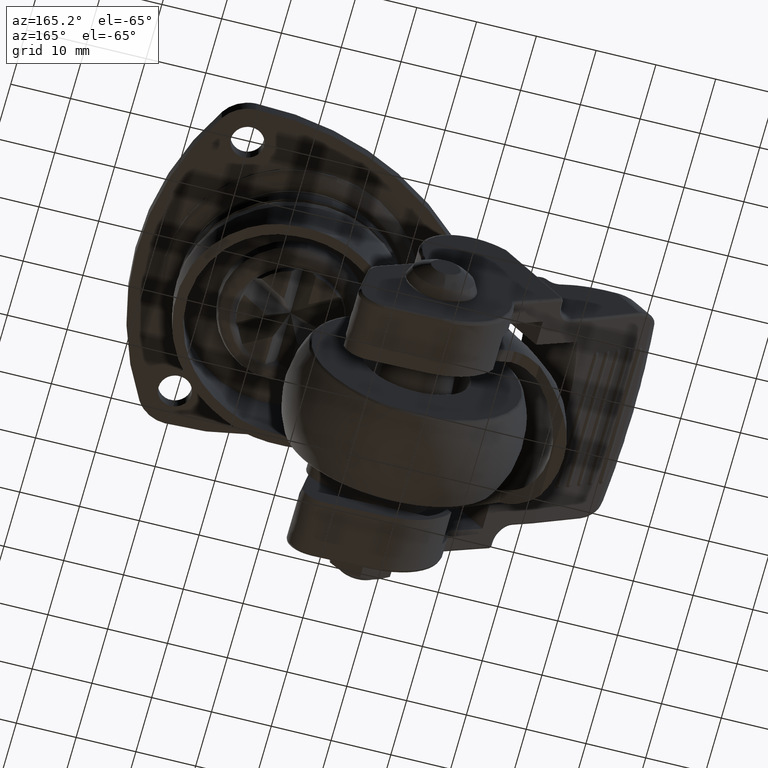
[diagram: clean part render]
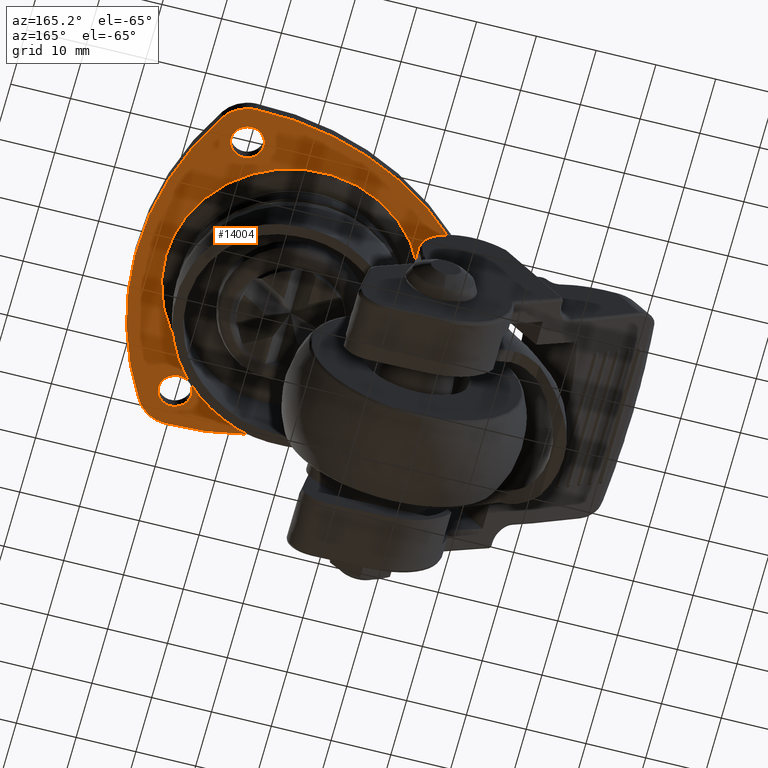
[diagram: same view with one face highlighted and labeled with its STEP entity id]
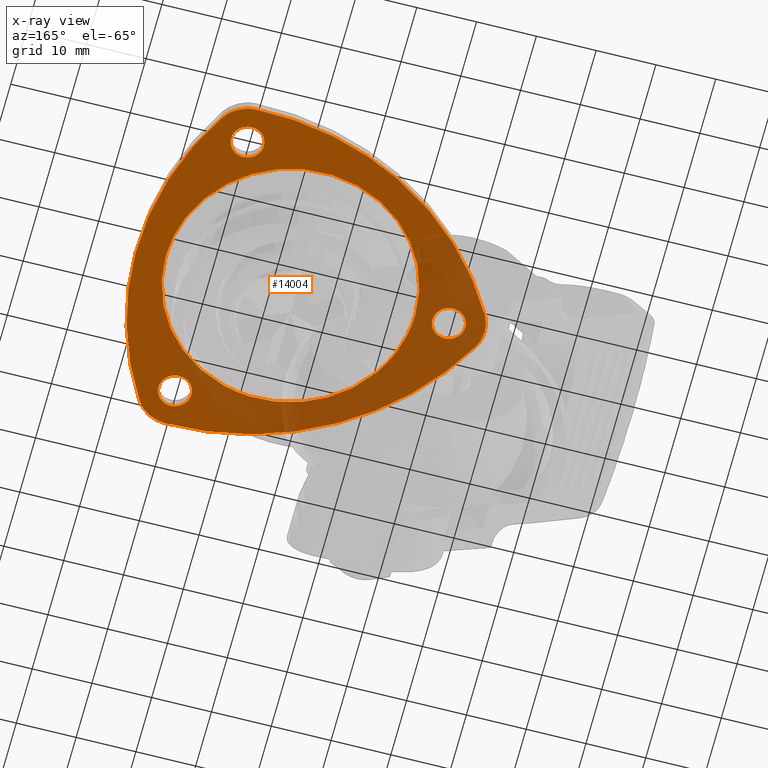
[diagram: x-ray of the same camera — body ghosted, the highlighted face saturated]
A machine part, auxiliary view. The second image highlights one B-rep face of the part: STEP entity #14004.
The next image is the same camera in x-ray: the body ghosted, the highlighted face saturated — about 40% of this face is hidden behind the body in this view.
In plain terms, the highlighted face is a freeform B-spline surface patch.
Its self-contained STEP definition (entity closure, byte-faithful):
#11914=CARTESIAN_POINT('',(-19.528077688085549,-7.334797007773908,-2.300000000000546));
#11915=VERTEX_POINT('',#11914);
#11921=CARTESIAN_POINT('',(-20.860130999999800,0.0,-2.300000000000095));
#11922=VERTEX_POINT('',#11921);
#11923=CARTESIAN_POINT('',(-19.528077688085553,-7.334797007773908,-2.300000000000546));
#11924=CARTESIAN_POINT('',(-20.860130999999797,-3.788353863932447,-2.300000000000094));
#11925=CARTESIAN_POINT('',(-20.860130999999800,0.0,-2.300000000000095));
#11933=(BOUNDED_CURVE()B_SPLINE_CURVE(2,(#11923,#11924,#11925),.UNSPECIFIED.,.F.,.U.)B_SPLINE_CURVE_WITH_KNOTS((3,3),(0.940284170898729,1.0),.UNSPECIFIED.)CURVE()GEOMETRIC_REPRESENTATION_ITEM()RATIONAL_B_SPLINE_CURVE((0.893499554635545,0.930038554401659,1.0))REPRESENTATION_ITEM(''));
#11934=EDGE_CURVE('',#11915,#11922,#11933,.T.);
#11936=CARTESIAN_POINT('',(20.860130999999800,0.0,-2.300000000000095));
#11937=VERTEX_POINT('',#11936);
#11938=CARTESIAN_POINT('',(-20.860130999999800,0.0,-2.300000000000095));
#11939=CARTESIAN_POINT('',(-20.860130999999807,20.860130999999807,-2.300000000000095));
#11940=CARTESIAN_POINT('',(0.0,20.860130999999800,-2.300000000000095));
#11941=CARTESIAN_POINT('',(20.860130999999807,20.860130999999807,-2.300000000000095));
#11942=CARTESIAN_POINT('',(20.860130999999800,0.0,-2.300000000000095));
#11950=(BOUNDED_CURVE()B_SPLINE_CURVE(2,(#11938,#11939,#11940,#11941,#11942),.UNSPECIFIED.,.F.,.U.)B_SPLINE_CURVE_WITH_KNOTS((3,2,3),(0.0,0.250000000000000,0.500000000000000),.UNSPECIFIED.)CURVE()GEOMETRIC_REPRESENTATION_ITEM()RATIONAL_B_SPLINE_CURVE((1.0,0.707106781186548,1.0,0.707106781186548,1.0))REPRESENTATION_ITEM(''));
#11951=EDGE_CURVE('',#11922,#11937,#11950,.T.);
#11953=CARTESIAN_POINT('',(1.273480532064832,-20.821222650738001,-2.300000000000293));
#11954=VERTEX_POINT('',#11953);
#11955=CARTESIAN_POINT('',(20.860130999999800,0.0,-2.300000000000095));
#11956=CARTESIAN_POINT('',(20.860130999999800,-19.623251788130293,-2.300000000000095));
#11957=CARTESIAN_POINT('',(1.273480532064832,-20.821222650737997,-2.300000000000293));
#11965=(BOUNDED_CURVE()B_SPLINE_CURVE(2,(#11955,#11956,#11957),.UNSPECIFIED.,.F.,.U.)B_SPLINE_CURVE_WITH_KNOTS((3,3),(0.500000000000000,0.739332962241818),.UNSPECIFIED.)CURVE()GEOMETRIC_REPRESENTATION_ITEM()RATIONAL_B_SPLINE_CURVE((1.0,0.719603993283341,0.976072041672880))REPRESENTATION_ITEM(''));
#11966=EDGE_CURVE('',#11937,#11954,#11965,.T.);
#12053=CARTESIAN_POINT('',(1.273480532064832,-20.821222650737997,-2.300000000000293));
#12054=CARTESIAN_POINT('',(0.637334644829624,-20.860130999999804,-2.300000000000094));
#12055=CARTESIAN_POINT('',(0.0,-20.860130999999800,-2.300000000000095));
#12056=CARTESIAN_POINT('',(-14.447926898025001,-20.860130999999804,-2.300000000000095));
#12057=CARTESIAN_POINT('',(-19.528077688085546,-7.334797007773908,-2.300000000000546));
#12065=(BOUNDED_CURVE()B_SPLINE_CURVE(2,(#12053,#12054,#12055,#12056,#12057),.UNSPECIFIED.,.F.,.U.)B_SPLINE_CURVE_WITH_KNOTS((3,2,3),(0.739332962241818,0.750000000000000,0.940284170898730),.UNSPECIFIED.)CURVE()GEOMETRIC_REPRESENTATION_ITEM()RATIONAL_B_SPLINE_CURVE((0.976072041672880,0.987502787903206,1.0,0.777068226784887,0.893499554635547))REPRESENTATION_ITEM(''));
#12066=EDGE_CURVE('',#11954,#11915,#12065,.T.);
#12128=CARTESIAN_POINT('',(-26.332119387536771,2.744870871270759,-2.300000000000080));
#12129=VERTEX_POINT('',#12128);
#12135=CARTESIAN_POINT('',(-23.750000000000000,0.0,-2.300000000000080));
#12136=VERTEX_POINT('',#12135);
#12137=CARTESIAN_POINT('',(-23.750000000000000,0.0,-2.300000000000080));
#12138=CARTESIAN_POINT('',(-23.750000000000004,2.586944395105406,-2.300000000000081));
#12139=CARTESIAN_POINT('',(-26.332119387536771,2.744870871270759,-2.300000000000080));
#12147=(BOUNDED_CURVE()B_SPLINE_CURVE(2,(#12137,#12138,#12139),.UNSPECIFIED.,.F.,.U.)B_SPLINE_CURVE_WITH_KNOTS((3,3),(0.500000000000000,0.739333142733659),.UNSPECIFIED.)CURVE()GEOMETRIC_REPRESENTATION_ITEM()RATIONAL_B_SPLINE_CURVE((1.0,0.719603781823997,0.976072428501558))REPRESENTATION_ITEM(''));
#12148=EDGE_CURVE('',#12136,#12129,#12147,.T.);
#12150=CARTESIAN_POINT('',(-26.824594145409119,-2.730776197487835,-2.300000000000080));
#12151=VERTEX_POINT('',#12150);
#12152=CARTESIAN_POINT('',(-26.824594145409122,-2.730776197487835,-2.300000000000079));
#12153=CARTESIAN_POINT('',(-26.662866329146880,-2.750000000000000,-2.300000000000079));
#12154=CARTESIAN_POINT('',(-26.500000000000000,-2.750000000000000,-2.300000000000080));
#12155=CARTESIAN_POINT('',(-23.750000000000011,-2.750000000000000,-2.300000000000080));
#12156=CARTESIAN_POINT('',(-23.750000000000000,0.0,-2.300000000000080));
#12164=(BOUNDED_CURVE()B_SPLINE_CURVE(2,(#12152,#12153,#12154,#12155,#12156),.UNSPECIFIED.,.F.,.U.)B_SPLINE_CURVE_WITH_KNOTS((3,2,3),(0.229562473502891,0.250000000000000,0.500000000000000),.UNSPECIFIED.)CURVE()GEOMETRIC_REPRESENTATION_ITEM()RATIONAL_B_SPLINE_CURVE((0.956026754162888,0.976055948318705,1.0,0.707106781186548,1.0))REPRESENTATION_ITEM(''));
#12165=EDGE_CURVE('',#12151,#12136,#12164,.T.);
#12209=CARTESIAN_POINT('',(-29.250000000000000,0.0,-2.300000000000080));
#12210=VERTEX_POINT('',#12209);
#12211=CARTESIAN_POINT('',(-29.250000000000000,0.0,-2.300000000000080));
#12212=CARTESIAN_POINT('',(-29.250000000000000,-2.442479946180645,-2.300000000000080));
#12213=CARTESIAN_POINT('',(-26.824594145409119,-2.730776197487836,-2.300000000000080));
#12221=(BOUNDED_CURVE()B_SPLINE_CURVE(2,(#12211,#12212,#12213),.UNSPECIFIED.,.F.,.U.)B_SPLINE_CURVE_WITH_KNOTS((3,3),(0.0,0.229562473502891),.UNSPECIFIED.)CURVE()GEOMETRIC_REPRESENTATION_ITEM()RATIONAL_B_SPLINE_CURVE((1.0,0.731050832867842,0.956026754162888))REPRESENTATION_ITEM(''));
#12222=EDGE_CURVE('',#12210,#12151,#12221,.T.);
#12224=CARTESIAN_POINT('',(-26.332119387536768,2.744870871270759,-2.300000000000080));
#12225=CARTESIAN_POINT('',(-26.415981340582942,2.750000000000000,-2.300000000000079));
#12226=CARTESIAN_POINT('',(-26.500000000000000,2.750000000000000,-2.300000000000080));
#12227=CARTESIAN_POINT('',(-29.250000000000004,2.750000000000000,-2.300000000000080));
#12228=CARTESIAN_POINT('',(-29.250000000000000,0.0,-2.300000000000080));
#12236=(BOUNDED_CURVE()B_SPLINE_CURVE(2,(#12224,#12225,#12226,#12227,#12228),.UNSPECIFIED.,.F.,.U.)B_SPLINE_CURVE_WITH_KNOTS((3,2,3),(0.739333142733659,0.750000000000000,1.0),.UNSPECIFIED.)CURVE()GEOMETRIC_REPRESENTATION_ITEM()RATIONAL_B_SPLINE_CURVE((0.976072428501559,0.987502999362551,1.0,0.707106781186548,1.0))REPRESENTATION_ITEM(''));
#12237=EDGE_CURVE('',#12129,#12210,#12236,.T.);
#12314=CARTESIAN_POINT('',(13.417880612463231,25.694544871270761,-2.300000000000080));
#12315=VERTEX_POINT('',#12314);
#12321=CARTESIAN_POINT('',(16.0,22.949674000000002,-2.300000000000080));
#12322=VERTEX_POINT('',#12321);
#12323=CARTESIAN_POINT('',(16.0,22.949674000000002,-2.300000000000080));
#12324=CARTESIAN_POINT('',(16.000000000000004,25.536618395105407,-2.300000000000080));
#12325=CARTESIAN_POINT('',(13.417880612463231,25.694544871270761,-2.300000000000080));
#12333=(BOUNDED_CURVE()B_SPLINE_CURVE(2,(#12323,#12324,#12325),.UNSPECIFIED.,.F.,.U.)B_SPLINE_CURVE_WITH_KNOTS((3,3),(0.500000000000000,0.739333142733659),.UNSPECIFIED.)CURVE()GEOMETRIC_REPRESENTATION_ITEM()RATIONAL_B_SPLINE_CURVE((1.0,0.719603781823997,0.976072428501558))REPRESENTATION_ITEM(''));
#12334=EDGE_CURVE('',#12322,#12315,#12333,.T.);
#12336=CARTESIAN_POINT('',(12.925405854590879,20.218897802512171,-2.300000000000080));
#12337=VERTEX_POINT('',#12336);
#12338=CARTESIAN_POINT('',(12.925405854590876,20.218897802512171,-2.300000000000080));
#12339=CARTESIAN_POINT('',(13.087133670853124,20.199674000000005,-2.300000000000079));
#12340=CARTESIAN_POINT('',(13.250000000000000,20.199674000000002,-2.300000000000080));
#12341=CARTESIAN_POINT('',(15.999999999999998,20.199674000000009,-2.300000000000080));
#12342=CARTESIAN_POINT('',(16.0,22.949674000000002,-2.300000000000080));
#12350=(BOUNDED_CURVE()B_SPLINE_CURVE(2,(#12338,#12339,#12340,#12341,#12342),.UNSPECIFIED.,.F.,.U.)B_SPLINE_CURVE_WITH_KNOTS((3,2,3),(0.229562473502891,0.250000000000000,0.500000000000000),.UNSPECIFIED.)CURVE()GEOMETRIC_REPRESENTATION_ITEM()RATIONAL_B_SPLINE_CURVE((0.956026754162888,0.976055948318706,1.0,0.707106781186548,1.0))REPRESENTATION_ITEM(''));
#12351=EDGE_CURVE('',#12337,#12322,#12350,.T.);
#12395=CARTESIAN_POINT('',(10.500000000000000,22.949674000000002,-2.300000000000080));
#12396=VERTEX_POINT('',#12395);
#12397=CARTESIAN_POINT('',(10.500000000000000,22.949674000000002,-2.300000000000080));
#12398=CARTESIAN_POINT('',(10.500000000000000,20.507194053819351,-2.300000000000079));
#12399=CARTESIAN_POINT('',(12.925405854590876,20.218897802512171,-2.300000000000080));
#12407=(BOUNDED_CURVE()B_SPLINE_CURVE(2,(#12397,#12398,#12399),.UNSPECIFIED.,.F.,.U.)B_SPLINE_CURVE_WITH_KNOTS((3,3),(0.0,0.229562473502891),.UNSPECIFIED.)CURVE()GEOMETRIC_REPRESENTATION_ITEM()RATIONAL_B_SPLINE_CURVE((1.0,0.731050832867842,0.956026754162888))REPRESENTATION_ITEM(''));
#12408=EDGE_CURVE('',#12396,#12337,#12407,.T.);
#12410=CARTESIAN_POINT('',(13.417880612463231,25.694544871270761,-2.300000000000080));
#12411=CARTESIAN_POINT('',(13.334018659417062,25.699674000000002,-2.300000000000080));
#12412=CARTESIAN_POINT('',(13.250000000000000,25.699674000000002,-2.300000000000080));
#12413=CARTESIAN_POINT('',(10.499999999999998,25.699673999999991,-2.300000000000080));
#12414=CARTESIAN_POINT('',(10.500000000000000,22.949674000000002,-2.300000000000080));
#12422=(BOUNDED_CURVE()B_SPLINE_CURVE(2,(#12410,#12411,#12412,#12413,#12414),.UNSPECIFIED.,.F.,.U.)B_SPLINE_CURVE_WITH_KNOTS((3,2,3),(0.739333142733659,0.750000000000000,1.0),.UNSPECIFIED.)CURVE()GEOMETRIC_REPRESENTATION_ITEM()RATIONAL_B_SPLINE_CURVE((0.976072428501558,0.987502999362551,1.0,0.707106781186548,1.0))REPRESENTATION_ITEM(''));
#12423=EDGE_CURVE('',#12315,#12396,#12422,.T.);
#12500=CARTESIAN_POINT('',(13.417880612463231,-20.204802128729341,-2.300000000000080));
#12501=VERTEX_POINT('',#12500);
#12507=CARTESIAN_POINT('',(16.0,-22.949673000000100,-2.300000000000080));
#12508=VERTEX_POINT('',#12507);
#12509=CARTESIAN_POINT('',(16.0,-22.949673000000100,-2.300000000000080));
#12510=CARTESIAN_POINT('',(16.000000000000004,-20.362728604894698,-2.300000000000080));
#12511=CARTESIAN_POINT('',(13.417880612463231,-20.204802128729341,-2.300000000000080));
#12519=(BOUNDED_CURVE()B_SPLINE_CURVE(2,(#12509,#12510,#12511),.UNSPECIFIED.,.F.,.U.)B_SPLINE_CURVE_WITH_KNOTS((3,3),(0.500000000000000,0.739333142733659),.UNSPECIFIED.)CURVE()GEOMETRIC_REPRESENTATION_ITEM()RATIONAL_B_SPLINE_CURVE((1.0,0.719603781823997,0.976072428501558))REPRESENTATION_ITEM(''));
#12520=EDGE_CURVE('',#12508,#12501,#12519,.T.);
#12522=CARTESIAN_POINT('',(12.925405854590879,-25.680449197487938,-2.300000000000080));
#12523=VERTEX_POINT('',#12522);
#12524=CARTESIAN_POINT('',(12.925405854590879,-25.680449197487938,-2.300000000000080));
#12525=CARTESIAN_POINT('',(13.087133670853126,-25.699673000000097,-2.300000000000080));
#12526=CARTESIAN_POINT('',(13.250000000000000,-25.699673000000100,-2.300000000000080));
#12527=CARTESIAN_POINT('',(15.999999999999998,-25.699673000000107,-2.300000000000080));
#12528=CARTESIAN_POINT('',(16.0,-22.949673000000100,-2.300000000000080));
#12536=(BOUNDED_CURVE()B_SPLINE_CURVE(2,(#12524,#12525,#12526,#12527,#12528),.UNSPECIFIED.,.F.,.U.)B_SPLINE_CURVE_WITH_KNOTS((3,2,3),(0.229562473502891,0.250000000000000,0.500000000000000),.UNSPECIFIED.)CURVE()GEOMETRIC_REPRESENTATION_ITEM()RATIONAL_B_SPLINE_CURVE((0.956026754162888,0.976055948318706,1.0,0.707106781186548,1.0))REPRESENTATION_ITEM(''));
#12537=EDGE_CURVE('',#12523,#12508,#12536,.T.);
#12581=CARTESIAN_POINT('',(10.500000000000000,-22.949673000000100,-2.300000000000080));
#12582=VERTEX_POINT('',#12581);
#12583=CARTESIAN_POINT('',(10.500000000000000,-22.949673000000100,-2.300000000000080));
#12584=CARTESIAN_POINT('',(10.500000000000000,-25.392152946180747,-2.300000000000080));
#12585=CARTESIAN_POINT('',(12.925405854590879,-25.680449197487938,-2.300000000000080));
#12593=(BOUNDED_CURVE()B_SPLINE_CURVE(2,(#12583,#12584,#12585),.UNSPECIFIED.,.F.,.U.)B_SPLINE_CURVE_WITH_KNOTS((3,3),(0.0,0.229562473502891),.UNSPECIFIED.)CURVE()GEOMETRIC_REPRESENTATION_ITEM()RATIONAL_B_SPLINE_CURVE((1.0,0.731050832867842,0.956026754162888))REPRESENTATION_ITEM(''));
#12594=EDGE_CURVE('',#12582,#12523,#12593,.T.);
#12596=CARTESIAN_POINT('',(13.417880612463231,-20.204802128729341,-2.300000000000080));
#12597=CARTESIAN_POINT('',(13.334018659417062,-20.199673000000104,-2.300000000000080));
#12598=CARTESIAN_POINT('',(13.250000000000000,-20.199673000000100,-2.300000000000080));
#12599=CARTESIAN_POINT('',(10.499999999999998,-20.199673000000111,-2.300000000000080));
#12600=CARTESIAN_POINT('',(10.500000000000000,-22.949673000000100,-2.300000000000080));
#12608=(BOUNDED_CURVE()B_SPLINE_CURVE(2,(#12596,#12597,#12598,#12599,#12600),.UNSPECIFIED.,.F.,.U.)B_SPLINE_CURVE_WITH_KNOTS((3,2,3),(0.739333142733659,0.750000000000000,1.0),.UNSPECIFIED.)CURVE()GEOMETRIC_REPRESENTATION_ITEM()RATIONAL_B_SPLINE_CURVE((0.976072428501558,0.987502999362551,1.0,0.707106781186548,1.0))REPRESENTATION_ITEM(''));
#12609=EDGE_CURVE('',#12501,#12582,#12608,.T.);
#13883=CARTESIAN_POINT('',(-35.407548841360907,31.853379514801791,-2.300000000000095));
#13884=CARTESIAN_POINT('',(28.616739386169861,31.853379514801791,-2.300000000000095));
#13885=CARTESIAN_POINT('',(-35.407548841360907,-31.853376444295250,-2.300000000000095));
#13886=CARTESIAN_POINT('',(28.616739386169861,-31.853376444295250,-2.300000000000095));
#13887=B_SPLINE_SURFACE_WITH_KNOTS('',1,1,((#13883,#13885),(#13884,#13886)),.UNSPECIFIED.,.F.,.F.,.U.,(2,2),(2,2),(0.0,64.024288227530775),(0.0,63.706755959097052),.UNSPECIFIED.);
#13888=CARTESIAN_POINT('',(18.369201818529849,26.079173804453351,-2.300000000000080));
#13889=VERTEX_POINT('',#13888);
#13890=CARTESIAN_POINT('',(13.400626615101521,28.947782728843048,-2.300000000000080));
#13891=VERTEX_POINT('',#13890);
#13892=CARTESIAN_POINT('',(18.369201818529849,26.079173804453351,-2.300000000000080));
#13893=CARTESIAN_POINT('',(16.665671970180849,28.865790037092776,-2.300000000000080));
#13894=CARTESIAN_POINT('',(13.400626615101521,28.947782728843048,-2.300000000000080));
#13902=(BOUNDED_CURVE()B_SPLINE_CURVE(2,(#13892,#13893,#13894),.UNSPECIFIED.,.F.,.U.)CURVE()GEOMETRIC_REPRESENTATION_ITEM()QUASI_UNIFORM_CURVE()RATIONAL_B_SPLINE_CURVE((1.0,0.878304632990336,1.0))REPRESENTATION_ITEM(''));
#13903=EDGE_CURVE('',#13889,#13891,#13902,.T.);
#13904=ORIENTED_EDGE('',*,*,#13903,.F.);
#13905=CARTESIAN_POINT('',(18.369201538223550,-26.079173856534499,-2.300000000000080));
#13906=VERTEX_POINT('',#13905);
#13907=CARTESIAN_POINT('',(18.369201538223550,-26.079173856534499,-2.300000000000080));
#13908=CARTESIAN_POINT('',(34.312078163401253,-0.000000111719852,-2.300000000000080));
#13909=CARTESIAN_POINT('',(18.369201818529859,26.079173804453340,-2.300000000000080));
#13917=(BOUNDED_CURVE()B_SPLINE_CURVE(2,(#13907,#13908,#13909),.UNSPECIFIED.,.F.,.U.)CURVE()GEOMETRIC_REPRESENTATION_ITEM()QUASI_UNIFORM_CURVE()RATIONAL_B_SPLINE_CURVE((1.0,0.853200255376253,1.0))REPRESENTATION_ITEM(''));
#13918=EDGE_CURVE('',#13906,#13889,#13917,.T.);
#13919=ORIENTED_EDGE('',*,*,#13918,.F.);
#13920=CARTESIAN_POINT('',(13.400626615101540,-28.947781728843250,-2.300000000000080));
#13921=VERTEX_POINT('',#13920);
#13922=CARTESIAN_POINT('',(13.400626615101540,-28.947781728843250,-2.300000000000080));
#13923=CARTESIAN_POINT('',(16.665671293823422,-28.865789054077798,-2.300000000000080));
#13924=CARTESIAN_POINT('',(18.369201538223560,-26.079173856534499,-2.300000000000080));
#13932=(BOUNDED_CURVE()B_SPLINE_CURVE(2,(#13922,#13923,#13924),.UNSPECIFIED.,.F.,.U.)CURVE()GEOMETRIC_REPRESENTATION_ITEM()QUASI_UNIFORM_CURVE()RATIONAL_B_SPLINE_CURVE((1.0,0.878304674578743,1.0))REPRESENTATION_ITEM(''));
#13933=EDGE_CURVE('',#13921,#13906,#13932,.T.);
#13934=ORIENTED_EDGE('',*,*,#13933,.F.);
#13935=CARTESIAN_POINT('',(-31.769828012035550,-2.868608150926780,-2.300000000000080));
#13936=VERTEX_POINT('',#13935);
#13937=CARTESIAN_POINT('',(-31.769828012035550,-2.868608150926780,-2.300000000000080));
#13938=CARTESIAN_POINT('',(-17.156038600813027,-29.715130692859464,-2.300000000000080));
#13939=CARTESIAN_POINT('',(13.400626615101521,-28.947781728843150,-2.300000000000080));
#13947=(BOUNDED_CURVE()B_SPLINE_CURVE(2,(#13937,#13938,#13939),.UNSPECIFIED.,.F.,.U.)CURVE()GEOMETRIC_REPRESENTATION_ITEM()QUASI_UNIFORM_CURVE()RATIONAL_B_SPLINE_CURVE((1.0,0.853200255966014,1.0))REPRESENTATION_ITEM(''));
#13948=EDGE_CURVE('',#13936,#13921,#13947,.T.);
#13949=ORIENTED_EDGE('',*,*,#13948,.F.);
#13950=CARTESIAN_POINT('',(-31.769827433630951,2.868608924389780,-2.300000000000080));
#13951=VERTEX_POINT('',#13950);
#13952=CARTESIAN_POINT('',(-31.769827433630951,2.868608924389780,-2.300000000000080));
#13953=CARTESIAN_POINT('',(-33.331342783626887,0.000000544157564,-2.300000000000079));
#13954=CARTESIAN_POINT('',(-31.769828012035550,-2.868608150926780,-2.300000000000080));
#13962=(BOUNDED_CURVE()B_SPLINE_CURVE(2,(#13952,#13953,#13954),.UNSPECIFIED.,.F.,.U.)CURVE()GEOMETRIC_REPRESENTATION_ITEM()QUASI_UNIFORM_CURVE()RATIONAL_B_SPLINE_CURVE((1.0,0.878304630588961,1.0))REPRESENTATION_ITEM(''));
#13963=EDGE_CURVE('',#13951,#13936,#13962,.T.);
#13964=ORIENTED_EDGE('',*,*,#13963,.F.);
#13965=CARTESIAN_POINT('',(13.400626615101530,28.947782728843048,-2.300000000000080));
#13966=CARTESIAN_POINT('',(-17.156038547551749,29.715131691521837,-2.300000000000079));
#13967=CARTESIAN_POINT('',(-31.769827433630951,2.868608924389775,-2.300000000000080));
#13975=(BOUNDED_CURVE()B_SPLINE_CURVE(2,(#13965,#13966,#13967),.UNSPECIFIED.,.F.,.U.)CURVE()GEOMETRIC_REPRESENTATION_ITEM()QUASI_UNIFORM_CURVE()RATIONAL_B_SPLINE_CURVE((1.0,0.853200256370594,1.0))REPRESENTATION_ITEM(''));
#13976=EDGE_CURVE('',#13891,#13951,#13975,.T.);
#13977=ORIENTED_EDGE('',*,*,#13976,.F.);
#13978=EDGE_LOOP('',(#13904,#13919,#13934,#13949,#13964,#13977));
#13979=FACE_OUTER_BOUND('',#13978,.T.);
#13980=ORIENTED_EDGE('',*,*,#11951,.F.);
#13981=ORIENTED_EDGE('',*,*,#11934,.F.);
#13982=ORIENTED_EDGE('',*,*,#12066,.F.);
#13983=ORIENTED_EDGE('',*,*,#11966,.F.);
#13984=EDGE_LOOP('',(#13980,#13981,#13982,#13983));
#13985=FACE_BOUND('',#13984,.T.);
#13986=ORIENTED_EDGE('',*,*,#12520,.T.);
#13987=ORIENTED_EDGE('',*,*,#12609,.T.);
#13988=ORIENTED_EDGE('',*,*,#12594,.T.);
#13989=ORIENTED_EDGE('',*,*,#12537,.T.);
#13990=EDGE_LOOP('',(#13986,#13987,#13988,#13989));
#13991=FACE_BOUND('',#13990,.T.);
#13992=ORIENTED_EDGE('',*,*,#12334,.T.);
#13993=ORIENTED_EDGE('',*,*,#12423,.T.);
#13994=ORIENTED_EDGE('',*,*,#12408,.T.);
#13995=ORIENTED_EDGE('',*,*,#12351,.T.);
#13996=EDGE_LOOP('',(#13992,#13993,#13994,#13995));
#13997=FACE_BOUND('',#13996,.T.);
#13998=ORIENTED_EDGE('',*,*,#12148,.T.);
#13999=ORIENTED_EDGE('',*,*,#12237,.T.);
#14000=ORIENTED_EDGE('',*,*,#12222,.T.);
#14001=ORIENTED_EDGE('',*,*,#12165,.T.);
#14002=EDGE_LOOP('',(#13998,#13999,#14000,#14001));
#14003=FACE_BOUND('',#14002,.T.);
#14004=ADVANCED_FACE('',(#13979,#13985,#13991,#13997,#14003),#13887,.T.);